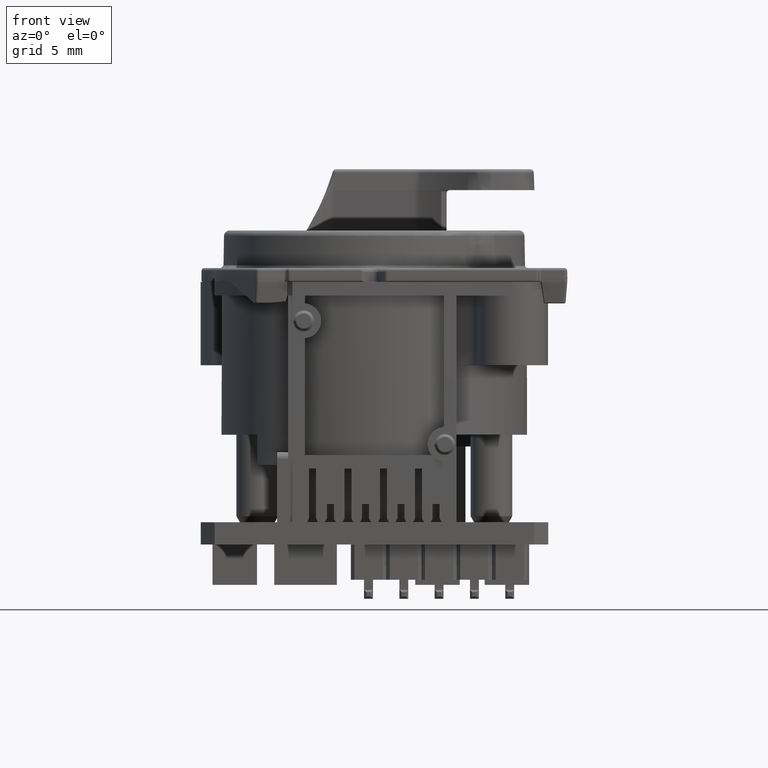
[diagram: clean part render]
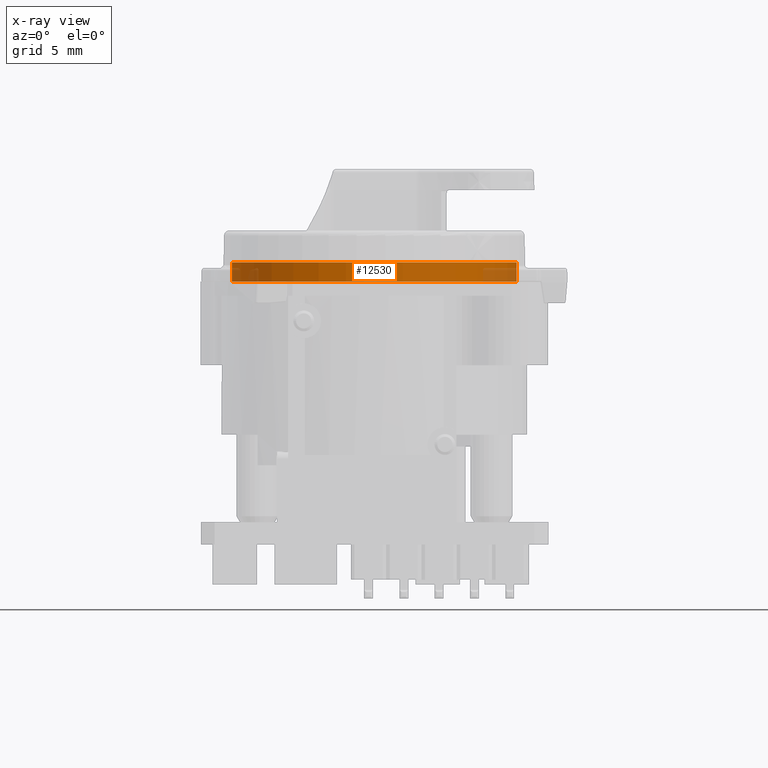
[diagram: x-ray — body ghosted, one internal face saturated and labeled with its STEP entity id]
A machine part, front view, then the same camera in x-ray: the body is ghosted and one INTERNAL B-rep face — a face not visible from any outside direction — is saturated and labeled: STEP entity #12530.
In plain terms, the highlighted cylindrical surface (partial cylindrical patch) has radius 10.25 mm, axis along (0, 0, 1).
Its self-contained STEP definition (entity closure, byte-faithful):
#3289=DIRECTION('',(0.E0,0.E0,1.E0));
#3290=VECTOR('',#3289,2.E-1);
#3291=CARTESIAN_POINT('',(5.125E0,8.876760388791E0,-2.5E0));
#3292=LINE('',#3291,#3290);
#3293=DIRECTION('',(0.E0,0.E0,1.E0));
#3294=VECTOR('',#3293,1.2E0);
#3295=CARTESIAN_POINT('',(-5.125E0,8.876760388790E0,-3.7E0));
#3296=LINE('',#3295,#3294);
#3297=DIRECTION('',(0.E0,0.E0,1.E0));
#3298=VECTOR('',#3297,2.E-1);
#3299=CARTESIAN_POINT('',(-5.125E0,8.876760388790E0,-2.5E0));
#3300=LINE('',#3299,#3298);
#3301=DIRECTION('',(0.E0,0.E0,1.E0));
#3302=VECTOR('',#3301,1.2E0);
#3303=CARTESIAN_POINT('',(5.125E0,8.876760388791E0,-3.7E0));
#3304=LINE('',#3303,#3302);
#3419=CARTESIAN_POINT('',(0.E0,0.E0,-3.7E0));
#3420=DIRECTION('',(0.E0,0.E0,1.E0));
#3421=DIRECTION('',(-5.E-1,8.660254037844E-1,0.E0));
#3422=AXIS2_PLACEMENT_3D('',#3419,#3420,#3421);
#6361=CARTESIAN_POINT('',(0.E0,0.E0,-2.3E0));
#6362=DIRECTION('',(0.E0,0.E0,1.E0));
#6363=DIRECTION('',(-5.E-1,8.660254037844E-1,0.E0));
#6364=AXIS2_PLACEMENT_3D('',#6361,#6362,#6363);
#7491=CARTESIAN_POINT('',(5.125E0,8.876760388791E0,-2.3E0));
#7492=VERTEX_POINT('',#7491);
#7493=CARTESIAN_POINT('',(-5.125E0,8.876760388790E0,-2.3E0));
#7494=VERTEX_POINT('',#7493);
#7857=CARTESIAN_POINT('',(-5.125E0,8.876760388790E0,-3.7E0));
#7858=VERTEX_POINT('',#7857);
#7859=CARTESIAN_POINT('',(5.125E0,8.876760388791E0,-3.7E0));
#7861=VERTEX_POINT('',#7859);
#7871=CARTESIAN_POINT('',(-5.125E0,8.876760388790E0,-2.5E0));
#7873=VERTEX_POINT('',#7871);
#7876=CARTESIAN_POINT('',(5.125E0,8.876760388791E0,-2.5E0));
#7878=VERTEX_POINT('',#7876);
#12513=CARTESIAN_POINT('',(0.E0,0.E0,-3.7E0));
#12514=DIRECTION('',(0.E0,0.E0,1.E0));
#12515=DIRECTION('',(1.E0,0.E0,0.E0));
#12516=AXIS2_PLACEMENT_3D('',#12513,#12514,#12515);
#12517=CYLINDRICAL_SURFACE('',#12516,1.025E1);
#12519=ORIENTED_EDGE('',*,*,#12518,.T.);
#12520=ORIENTED_EDGE('',*,*,#12476,.T.);
#12522=ORIENTED_EDGE('',*,*,#12521,.T.);
#12523=ORIENTED_EDGE('',*,*,#12501,.F.);
#12525=ORIENTED_EDGE('',*,*,#12524,.F.);
#12527=ORIENTED_EDGE('',*,*,#12526,.F.);
#12528=EDGE_LOOP('',(#12519,#12520,#12522,#12523,#12525,#12527));
#12529=FACE_OUTER_BOUND('',#12528,.F.);
#12530=ADVANCED_FACE('',(#12529),#12517,.T.);
#3423=CIRCLE('',#3422,1.025E1);
#6365=CIRCLE('',#6364,1.025E1);
#12476=EDGE_CURVE('',#7873,#7494,#3300,.T.);
#12501=EDGE_CURVE('',#7878,#7492,#3292,.T.);
#12518=EDGE_CURVE('',#7858,#7873,#3296,.T.);
#12521=EDGE_CURVE('',#7494,#7492,#6365,.T.);
#12524=EDGE_CURVE('',#7861,#7878,#3304,.T.);
#12526=EDGE_CURVE('',#7858,#7861,#3423,.T.);